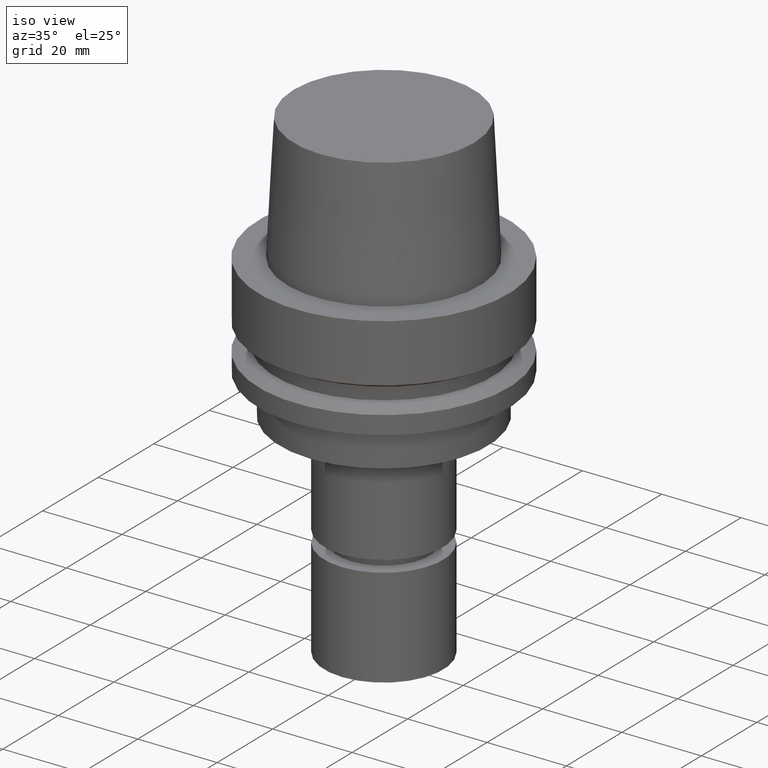
[diagram: clean part render]
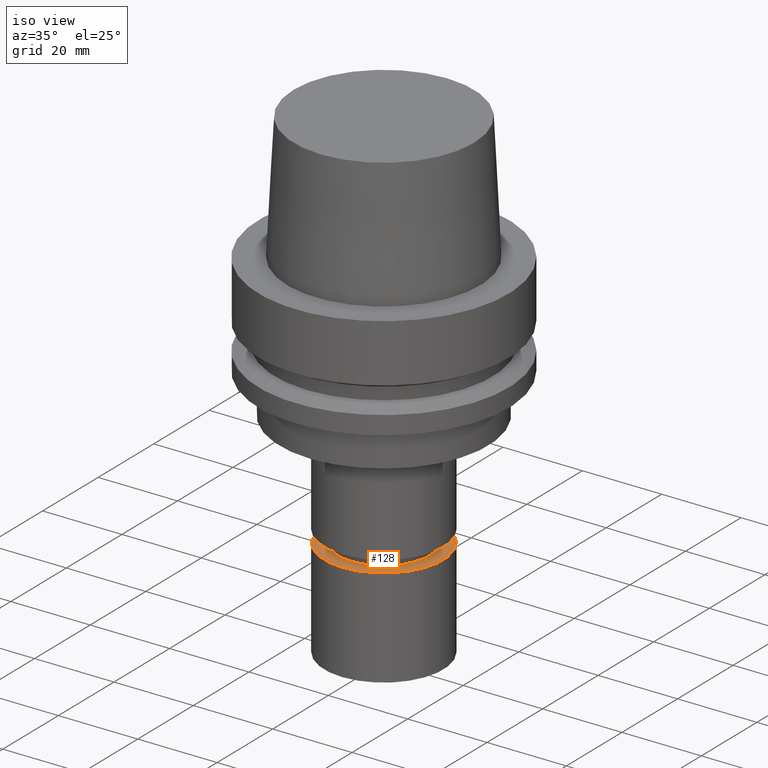
[diagram: same view with one face highlighted and labeled with its STEP entity id]
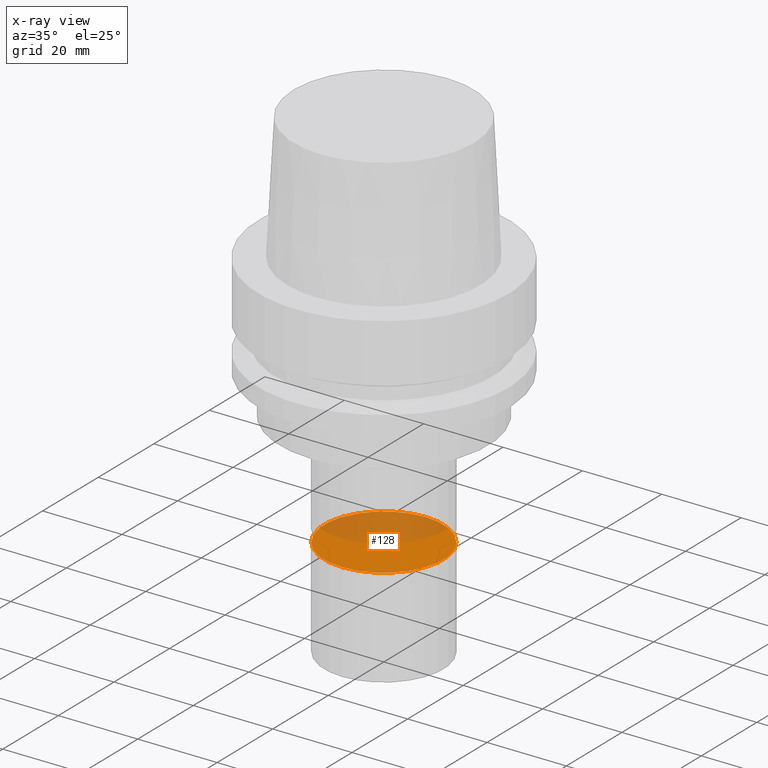
[diagram: x-ray of the same camera — body ghosted, the highlighted face saturated]
A machine part, iso view. The second image highlights one B-rep face of the part: STEP entity #128.
The next image is the same camera in x-ray: the body ghosted, the highlighted face saturated — about 42% of this face is hidden behind the body in this view.
In plain terms, the highlighted planar face has unit normal (-0, -0, 1).
Its self-contained STEP definition (entity closure, byte-faithful):
#128=ADVANCED_FACE('Unnamed[1]',(#288),#289,.T.);
#133=EDGE_CURVE('Unnamed[1]',#296,#296,#297,.T.);
#288=FACE_OUTER_BOUND('',#497,.T.);
#289=PLANE('',#498);
#296=VERTEX_POINT('',#507);
#297=CIRCLE('',#508,15.0000000000001);
#497=EDGE_LOOP('',(#707));
#498=AXIS2_PLACEMENT_3D('',#708,#709,#710);
#507=CARTESIAN_POINT('',(3.9801020972289E-015,15.0000000000001,-65.0));
#508=AXIS2_PLACEMENT_3D('',#717,#718,#719);
#707=ORIENTED_EDGE('',*,*,#133,.F.);
#708=CARTESIAN_POINT('',(3.9801020972289E-015,7.50000000000004,-65.0));
#709=DIRECTION('',(-6.12323399573677E-017,-1.22464679914735E-016,1.0));
#710=DIRECTION('',(1.23259516440783E-032,-1.0,-1.22464679914735E-016));
#717=CARTESIAN_POINT('',(3.9801020972289E-015,7.9602041944578E-015,-65.0));
#718=DIRECTION('',(6.12323399573677E-017,1.22464679914735E-016,-1.0));
#719=DIRECTION('',(-1.23259516440783E-032,1.0,1.22464679914735E-016));